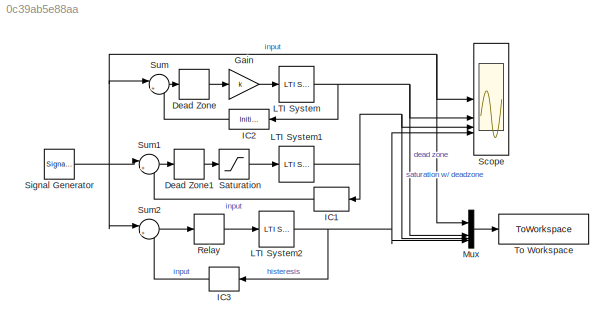
MODEL slx_0c39ab5e88aa
KIND model
CONFIG AbsTol = auto
CONFIG EnableMultiTasking = off
CONFIG FixedStep = 1e-3
CONFIG MaxStep = auto
CONFIG MinStep = auto
CONFIG RelTol = 1e-3
CONFIG SampleTimeConstraint = Unconstrained
CONFIG SolverName = ode8
CONFIG StartTime = 0.0
CONFIG StopTime = 30
BLOCK [DeadZone] Dead Zone
  LowerValue = -S_1
  UpperValue = S_1
BLOCK [DeadZone] Dead Zone1
  LowerValue = -S_2
  UpperValue = S_2
BLOCK [Gain] Gain
  Gain = k
BLOCK [InitialCondition] IC1
  NameLocation = top
  Value = ic
BLOCK [InitialCondition] IC2
  NameLocation = top
  Value = ic
BLOCK [InitialCondition] IC3
  NameLocation = top
  Value = ic
BLOCK [Reference] LTI System  REF=cstblocks/LTI System
  SourceBlock = cstblocks/LTI System
  SourceType = LTI Block
BLOCK [Reference] LTI System1  REF=cstblocks/LTI System
  SourceBlock = cstblocks/LTI System
  SourceType = LTI Block
BLOCK [Reference] LTI System2  REF=cstblocks/LTI System
  SourceBlock = cstblocks/LTI System
  SourceType = LTI Block
BLOCK [Mux] Mux
  DisplayOption = bar
BLOCK [Relay] Relay
  OffOutputValue = -M_3
  OffSwitchValue = -h
  OnOutputValue = M_3
  OnSwitchValue = h
BLOCK [Saturate] Saturation
  LowerLimit = -M_2
  UpperLimit = M_2
BLOCK [Scope] Scope
  Floating = off
  NumInputPorts = 4
  ScopeSpecificationString = Simulink.scopes.TimeScopeBlockCfg('CurrentConfiguration', extmgr.ConfigurationSet(extmgr.Configuration('Core','General UI',true,'FigureColor',[1 1 1]),extmgr.Configuration('Core','Source UI',true),extmgr.Configuration('Sources','WiredSimulink',true),extmgr.Configuration('Visuals','Time Domain',true,'SerializedDisplays',{struct('MinYLimReal','-10','MaxYLimReal','10','YLabelReal','','MinYLimMag','0....<+1928ch>
BLOCK [SignalGenerator] Signal Generator
  Amplitude = Amp
  Frequency = freq
  Units = rad/sec
BLOCK [Sum] Sum
  Inputs = |+-
BLOCK [Sum] Sum1
  Inputs = |+-
BLOCK [Sum] Sum2
  Inputs = |+-
BLOCK [ToWorkspace] To Workspace
  FixptAsFi = on
  MaxDataPoints = inf
  SampleTime = -1
  SaveFormat = Timeseries
  VariableName = simout
LINE Dead Zone1:1 -> Saturation:1
LINE Dead Zone:1 -> Gain:1
LINE Gain:1 -> LTI System:1
LINE IC1:1 -> Sum1:2
LINE IC2:1 -> Sum:2
LINE IC3:1 -> Sum2:2
NET LTI System1:1 -> IC1:1, Mux:3, Scope:3
NET LTI System2:1 -> IC3:1, Mux:4, Scope:4
NET LTI System:1 -> IC2:1, Mux:2, Scope:2
LINE Mux:1 -> To Workspace:1
LINE Relay:1 -> LTI System2:1
LINE Saturation:1 -> LTI System1:1
NET Signal Generator:1 -> Mux:1, Scope:1, Sum1:1, Sum2:1, Sum:1
LINE Sum1:1 -> Dead Zone1:1
LINE Sum2:1 -> Relay:1
LINE Sum:1 -> Dead Zone:1
note: NET lines group one-source signal fan-out (src -> all destinations, sorted); 1:1 wires keep LINE
